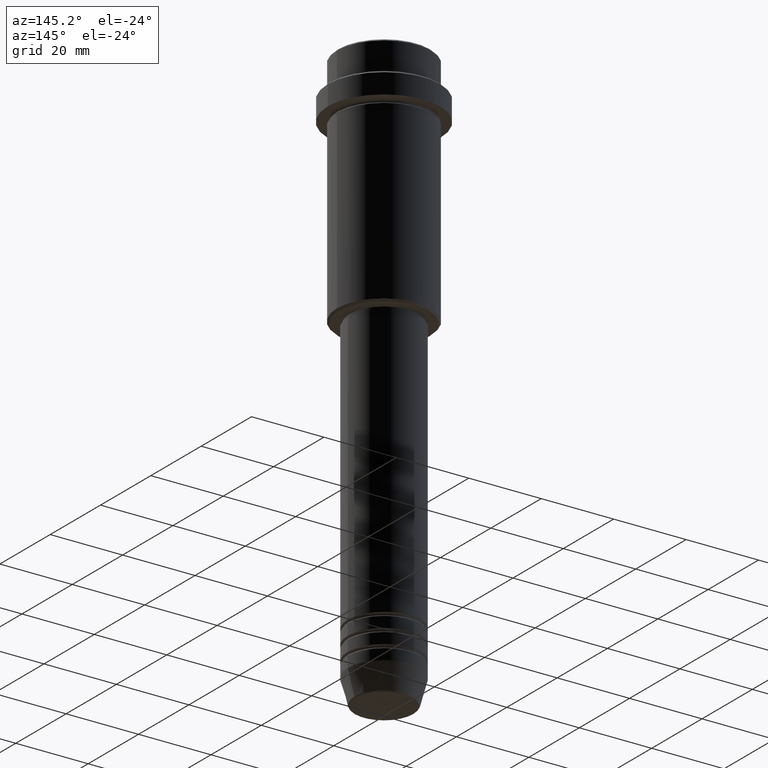
[diagram: clean part render]
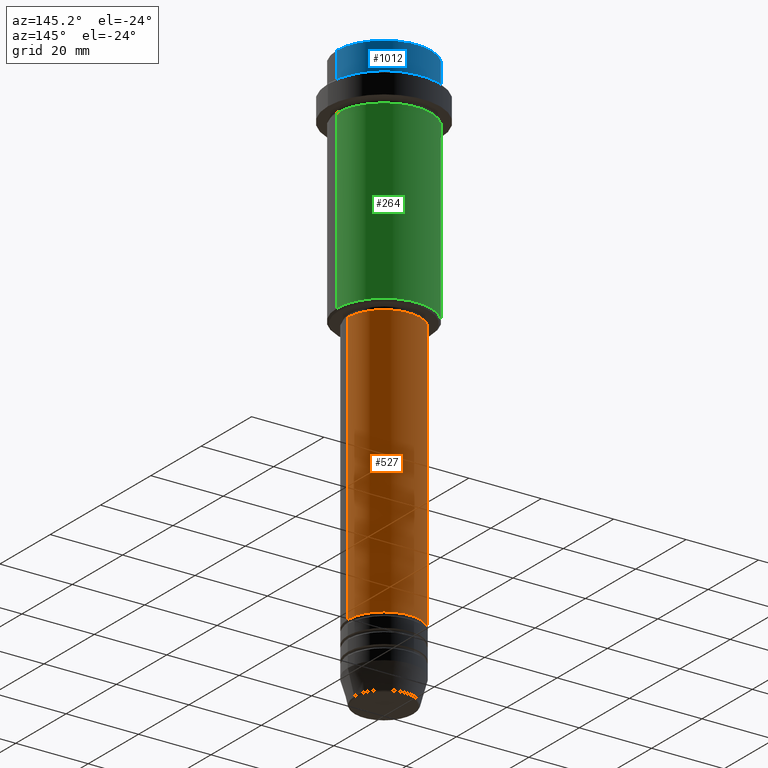
[diagram: same view with three faces highlighted in distinct colors, each labeled with its STEP entity id]
A machine part, auxiliary view with three faces highlighted in distinct colors.
Their STEP definitions:

[orange] entity #527 — the highlighted cylindrical surface (partial cylindrical patch) has radius 10 mm, axis along (-0, -0, 1).
#17 = DIRECTION ( 'NONE',  ( -0.000000000000000000, -0.000000000000000000, 1.000000000000000000 ) ) ;
#40 = EDGE_CURVE ( 'NONE', #697, #711, #298, .T. ) ;
#73 = ORIENTED_EDGE ( 'NONE', *, *, #797, .F. ) ;
#82 = DIRECTION ( 'NONE',  ( -0.000000000000000000, -0.000000000000000000, 1.000000000000000000 ) ) ;
#87 = DIRECTION ( 'NONE',  ( -0.000000000000000000, -0.000000000000000000, 1.000000000000000000 ) ) ;
#112 = CARTESIAN_POINT ( 'NONE',  ( 10.00000000000000000, 0.000000000000000000, -140.9999999999999147 ) ) ;
#139 = DIRECTION ( 'NONE',  ( -0.000000000000000000, -0.000000000000000000, 1.000000000000000000 ) ) ;
#168 = AXIS2_PLACEMENT_3D ( 'NONE', #1020, #460, #909 ) ;
#193 = CYLINDRICAL_SURFACE ( 'NONE', #399, 10.00000000000000178 ) ;
#196 = EDGE_CURVE ( 'NONE', #825, #711, #932, .T. ) ;
#274 = CARTESIAN_POINT ( 'NONE',  ( 0.000000000000000000, 0.000000000000000000, 0.000000000000000000 ) ) ;
#298 = CIRCLE ( 'NONE', #168, 10.00000000000000178 ) ;
#399 = AXIS2_PLACEMENT_3D ( 'NONE', #274, #87, #617 ) ;
#415 = EDGE_CURVE ( 'NONE', #1109, #825, #952, .T. ) ;
#436 = ORIENTED_EDGE ( 'NONE', *, *, #196, .T. ) ;
#460 = DIRECTION ( 'NONE',  ( -0.000000000000000000, -0.000000000000000000, 1.000000000000000000 ) ) ;
#520 = VECTOR ( 'NONE', #17, 1000.000000000000000 ) ;
#527 = ADVANCED_FACE ( 'NONE', ( #1161 ), #193, .T. ) ;
#530 = ORIENTED_EDGE ( 'NONE', *, *, #415, .T. ) ;
#617 = DIRECTION ( 'NONE',  ( 1.000000000000000000, 0.000000000000000000, 0.000000000000000000 ) ) ;
#626 = DIRECTION ( 'NONE',  ( 1.000000000000000000, 0.000000000000000000, 0.000000000000000000 ) ) ;
#693 = CARTESIAN_POINT ( 'NONE',  ( -10.00000000000000178, 1.224646799147353454E-15, 0.000000000000000000 ) ) ;
#697 = VERTEX_POINT ( 'NONE', #1313 ) ;
#711 = VERTEX_POINT ( 'NONE', #1091 ) ;
#792 = EDGE_LOOP ( 'NONE', ( #530, #436, #1227, #73 ) ) ;
#797 = EDGE_CURVE ( 'NONE', #1109, #697, #1023, .T. ) ;
#825 = VERTEX_POINT ( 'NONE', #833 ) ;
#833 = CARTESIAN_POINT ( 'NONE',  ( -10.00000000000000000, 1.224646799147353256E-15, -140.9999999999999147 ) ) ;
#896 = CARTESIAN_POINT ( 'NONE',  ( 10.00000000000000178, 0.000000000000000000, 0.000000000000000000 ) ) ;
#909 = DIRECTION ( 'NONE',  ( 1.000000000000000000, 0.000000000000000000, 0.000000000000000000 ) ) ;
#932 = LINE ( 'NONE', #693, #1222 ) ;
#952 = CIRCLE ( 'NONE', #1092, 10.00000000000000000 ) ;
#1020 = CARTESIAN_POINT ( 'NONE',  ( 0.000000000000000000, 0.000000000000000000, -66.00000000000000000 ) ) ;
#1023 = LINE ( 'NONE', #896, #520 ) ;
#1091 = CARTESIAN_POINT ( 'NONE',  ( -10.00000000000000178, 1.224646799147353454E-15, -66.00000000000000000 ) ) ;
#1092 = AXIS2_PLACEMENT_3D ( 'NONE', #1391, #82, #626 ) ;
#1109 = VERTEX_POINT ( 'NONE', #112 ) ;
#1161 = FACE_OUTER_BOUND ( 'NONE', #792, .T. ) ;
#1222 = VECTOR ( 'NONE', #139, 1000.000000000000000 ) ;
#1227 = ORIENTED_EDGE ( 'NONE', *, *, #40, .F. ) ;
#1313 = CARTESIAN_POINT ( 'NONE',  ( 10.00000000000000178, 0.000000000000000000, -66.00000000000000000 ) ) ;
#1391 = CARTESIAN_POINT ( 'NONE',  ( 0.000000000000000000, 0.000000000000000000, -140.9999999999999147 ) ) ;

[blue] entity #1012 — the highlighted cylindrical surface (partial cylindrical patch) has radius 13 mm, axis along (-0, -0, 1).
#14 = CYLINDRICAL_SURFACE ( 'NONE', #126, 12.99999999999999822 ) ;
#30 = EDGE_CURVE ( 'NONE', #1169, #1296, #468, .T. ) ;
#38 = CARTESIAN_POINT ( 'NONE',  ( 12.99999999999999822, 0.000000000000000000, 0.000000000000000000 ) ) ;
#89 = DIRECTION ( 'NONE',  ( -0.000000000000000000, -0.000000000000000000, 1.000000000000000000 ) ) ;
#90 = ORIENTED_EDGE ( 'NONE', *, *, #1263, .T. ) ;
#107 = EDGE_CURVE ( 'NONE', #400, #1296, #349, .T. ) ;
#113 = ORIENTED_EDGE ( 'NONE', *, *, #30, .F. ) ;
#126 = AXIS2_PLACEMENT_3D ( 'NONE', #993, #1226, #790 ) ;
#242 = ORIENTED_EDGE ( 'NONE', *, *, #917, .T. ) ;
#279 = DIRECTION ( 'NONE',  ( 1.000000000000000000, 0.000000000000000000, 0.000000000000000000 ) ) ;
#286 = ORIENTED_EDGE ( 'NONE', *, *, #107, .T. ) ;
#306 = CARTESIAN_POINT ( 'NONE',  ( -12.99999999999999822, 1.592040838891558898E-15, -0.4999999999999622524 ) ) ;
#349 = CIRCLE ( 'NONE', #1049, 12.99999999999999822 ) ;
#383 = CARTESIAN_POINT ( 'NONE',  ( 12.99999999999999822, 0.000000000000000000, -7.999999999999998224 ) ) ;
#389 = DIRECTION ( 'NONE',  ( 0.000000000000000000, 0.000000000000000000, -1.000000000000000000 ) ) ;
#400 = VERTEX_POINT ( 'NONE', #306 ) ;
#468 = LINE ( 'NONE', #38, #585 ) ;
#579 = DIRECTION ( 'NONE',  ( -0.000000000000000000, -0.000000000000000000, 1.000000000000000000 ) ) ;
#585 = VECTOR ( 'NONE', #579, 1000.000000000000000 ) ;
#599 = DIRECTION ( 'NONE',  ( 1.000000000000000000, 0.000000000000000000, 0.000000000000000000 ) ) ;
#633 = CARTESIAN_POINT ( 'NONE',  ( -12.99999999999999822, 1.592040838891558898E-15, 0.000000000000000000 ) ) ;
#665 = FACE_OUTER_BOUND ( 'NONE', #1046, .T. ) ;
#686 = CIRCLE ( 'NONE', #1318, 12.99999999999999822 ) ;
#790 = DIRECTION ( 'NONE',  ( 1.000000000000000000, 0.000000000000000000, 0.000000000000000000 ) ) ;
#809 = CARTESIAN_POINT ( 'NONE',  ( 0.000000000000000000, 0.000000000000000000, -0.4999999999999622524 ) ) ;
#917 = EDGE_CURVE ( 'NONE', #1212, #400, #972, .T. ) ;
#972 = LINE ( 'NONE', #633, #1001 ) ;
#993 = CARTESIAN_POINT ( 'NONE',  ( 0.000000000000000000, 0.000000000000000000, 0.000000000000000000 ) ) ;
#1001 = VECTOR ( 'NONE', #1196, 1000.000000000000000 ) ;
#1012 = ADVANCED_FACE ( 'NONE', ( #665 ), #14, .T. ) ;
#1046 = EDGE_LOOP ( 'NONE', ( #90, #242, #286, #113 ) ) ;
#1049 = AXIS2_PLACEMENT_3D ( 'NONE', #809, #389, #599 ) ;
#1127 = CARTESIAN_POINT ( 'NONE',  ( -12.99999999999999822, 1.592040838891558898E-15, -7.999999999999998224 ) ) ;
#1163 = CARTESIAN_POINT ( 'NONE',  ( 12.99999999999999822, 0.000000000000000000, -0.4999999999999622524 ) ) ;
#1169 = VERTEX_POINT ( 'NONE', #383 ) ;
#1196 = DIRECTION ( 'NONE',  ( -0.000000000000000000, -0.000000000000000000, 1.000000000000000000 ) ) ;
#1212 = VERTEX_POINT ( 'NONE', #1127 ) ;
#1226 = DIRECTION ( 'NONE',  ( -0.000000000000000000, -0.000000000000000000, 1.000000000000000000 ) ) ;
#1263 = EDGE_CURVE ( 'NONE', #1169, #1212, #686, .T. ) ;
#1296 = VERTEX_POINT ( 'NONE', #1163 ) ;
#1318 = AXIS2_PLACEMENT_3D ( 'NONE', #1387, #89, #279 ) ;
#1387 = CARTESIAN_POINT ( 'NONE',  ( 0.000000000000000000, 0.000000000000000000, -7.999999999999998224 ) ) ;

[green] entity #264 — the highlighted cylindrical surface (partial cylindrical patch) has radius 13 mm, axis along (-0, -0, 1).
#21 = VERTEX_POINT ( 'NONE', #899 ) ;
#68 = FACE_OUTER_BOUND ( 'NONE', #210, .T. ) ;
#167 = LINE ( 'NONE', #412, #169 ) ;
#169 = VECTOR ( 'NONE', #1282, 1000.000000000000000 ) ;
#190 = CIRCLE ( 'NONE', #329, 13.00000000000000000 ) ;
#210 = EDGE_LOOP ( 'NONE', ( #971, #1195, #943, #367 ) ) ;
#211 = LINE ( 'NONE', #347, #1158 ) ;
#221 = VERTEX_POINT ( 'NONE', #239 ) ;
#239 = CARTESIAN_POINT ( 'NONE',  ( -13.00000000000000000, 1.592040838891559095E-15, -64.49999999999997158 ) ) ;
#264 = ADVANCED_FACE ( 'NONE', ( #68 ), #1271, .T. ) ;
#301 = VERTEX_POINT ( 'NONE', #692 ) ;
#329 = AXIS2_PLACEMENT_3D ( 'NONE', #701, #581, #924 ) ;
#347 = CARTESIAN_POINT ( 'NONE',  ( 13.00000000000000000, 0.000000000000000000, 0.000000000000000000 ) ) ;
#367 = ORIENTED_EDGE ( 'NONE', *, *, #1041, .F. ) ;
#412 = CARTESIAN_POINT ( 'NONE',  ( -13.00000000000000000, 1.592040838891559095E-15, 0.000000000000000000 ) ) ;
#421 = AXIS2_PLACEMENT_3D ( 'NONE', #1374, #936, #718 ) ;
#434 = EDGE_CURVE ( 'NONE', #1354, #21, #1245, .T. ) ;
#452 = EDGE_CURVE ( 'NONE', #221, #21, #167, .T. ) ;
#549 = DIRECTION ( 'NONE',  ( -0.000000000000000000, -0.000000000000000000, 1.000000000000000000 ) ) ;
#581 = DIRECTION ( 'NONE',  ( -0.000000000000000000, -0.000000000000000000, 1.000000000000000000 ) ) ;
#692 = CARTESIAN_POINT ( 'NONE',  ( 13.00000000000000000, 0.000000000000000000, -64.49999999999997158 ) ) ;
#701 = CARTESIAN_POINT ( 'NONE',  ( 0.000000000000000000, 0.000000000000000000, -64.49999999999997158 ) ) ;
#718 = DIRECTION ( 'NONE',  ( 1.000000000000000000, 0.000000000000000000, 0.000000000000000000 ) ) ;
#773 = EDGE_CURVE ( 'NONE', #301, #221, #190, .T. ) ;
#842 = CARTESIAN_POINT ( 'NONE',  ( 13.00000000000000000, 0.000000000000000000, -16.00000000000000000 ) ) ;
#899 = CARTESIAN_POINT ( 'NONE',  ( -13.00000000000000000, 1.592040838891559095E-15, -16.00000000000000000 ) ) ;
#924 = DIRECTION ( 'NONE',  ( -1.000000000000000000, 0.000000000000000000, 0.000000000000000000 ) ) ;
#936 = DIRECTION ( 'NONE',  ( -0.000000000000000000, -0.000000000000000000, 1.000000000000000000 ) ) ;
#943 = ORIENTED_EDGE ( 'NONE', *, *, #434, .F. ) ;
#971 = ORIENTED_EDGE ( 'NONE', *, *, #773, .T. ) ;
#1041 = EDGE_CURVE ( 'NONE', #301, #1354, #211, .T. ) ;
#1056 = DIRECTION ( 'NONE',  ( -0.000000000000000000, -0.000000000000000000, 1.000000000000000000 ) ) ;
#1152 = DIRECTION ( 'NONE',  ( 1.000000000000000000, 0.000000000000000000, 0.000000000000000000 ) ) ;
#1158 = VECTOR ( 'NONE', #549, 1000.000000000000000 ) ;
#1170 = CARTESIAN_POINT ( 'NONE',  ( 0.000000000000000000, 0.000000000000000000, 0.000000000000000000 ) ) ;
#1195 = ORIENTED_EDGE ( 'NONE', *, *, #452, .T. ) ;
#1245 = CIRCLE ( 'NONE', #421, 13.00000000000000000 ) ;
#1271 = CYLINDRICAL_SURFACE ( 'NONE', #1402, 13.00000000000000000 ) ;
#1282 = DIRECTION ( 'NONE',  ( -0.000000000000000000, -0.000000000000000000, 1.000000000000000000 ) ) ;
#1354 = VERTEX_POINT ( 'NONE', #842 ) ;
#1374 = CARTESIAN_POINT ( 'NONE',  ( 0.000000000000000000, 0.000000000000000000, -16.00000000000000000 ) ) ;
#1402 = AXIS2_PLACEMENT_3D ( 'NONE', #1170, #1056, #1152 ) ;